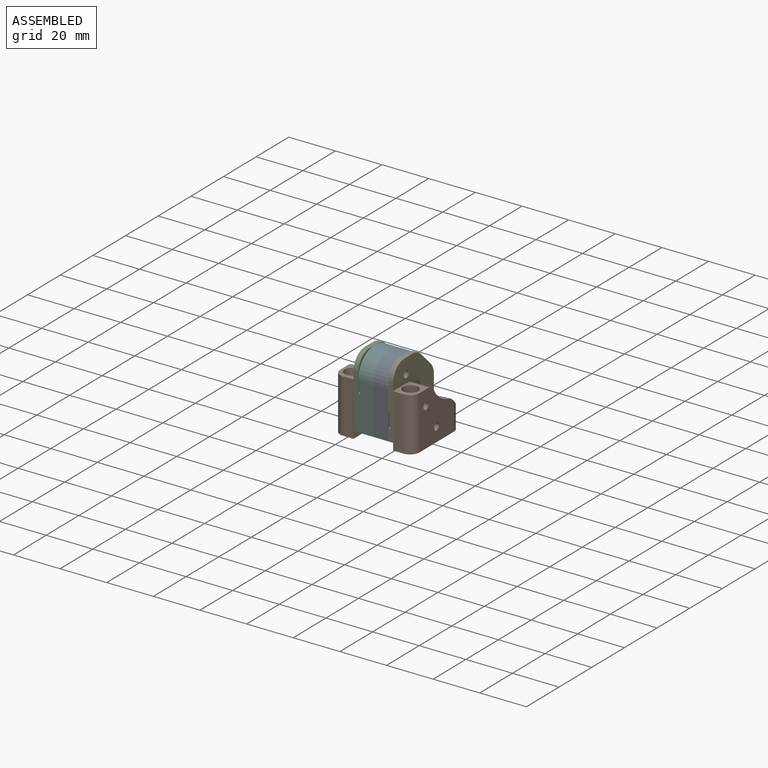
[diagram: assembled view]
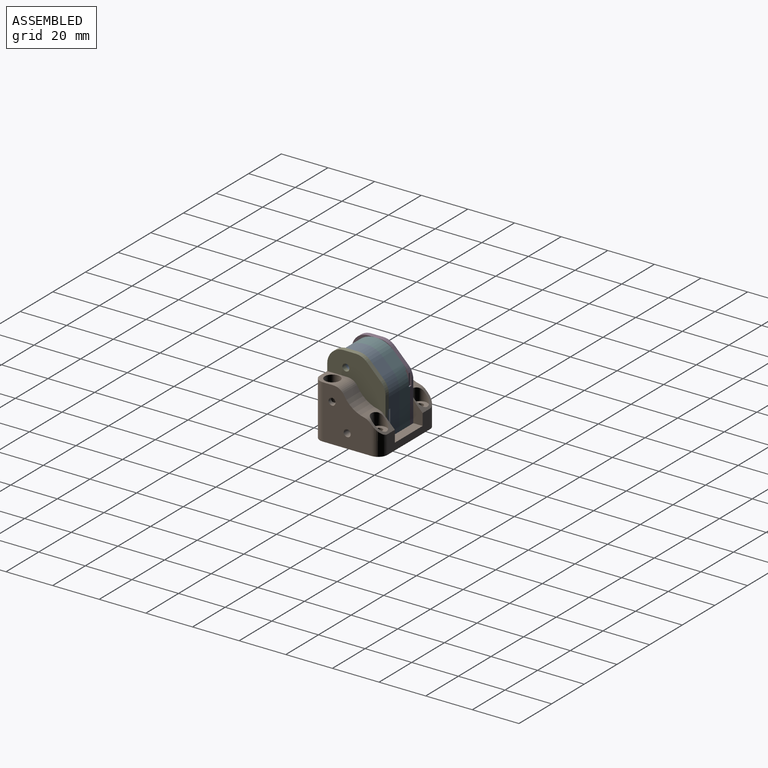
[diagram: assembled view, second angle]
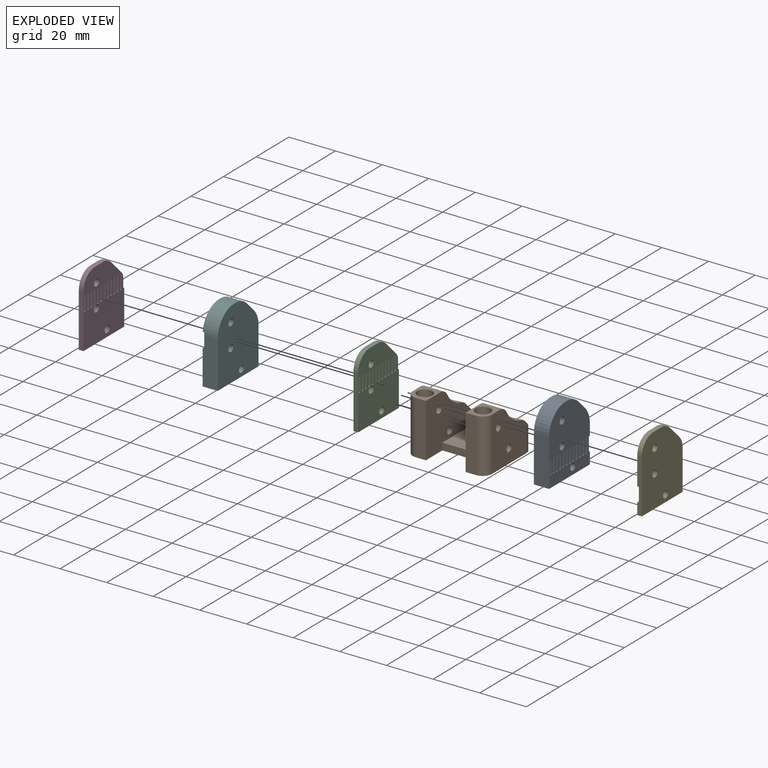
[diagram: exploded view]
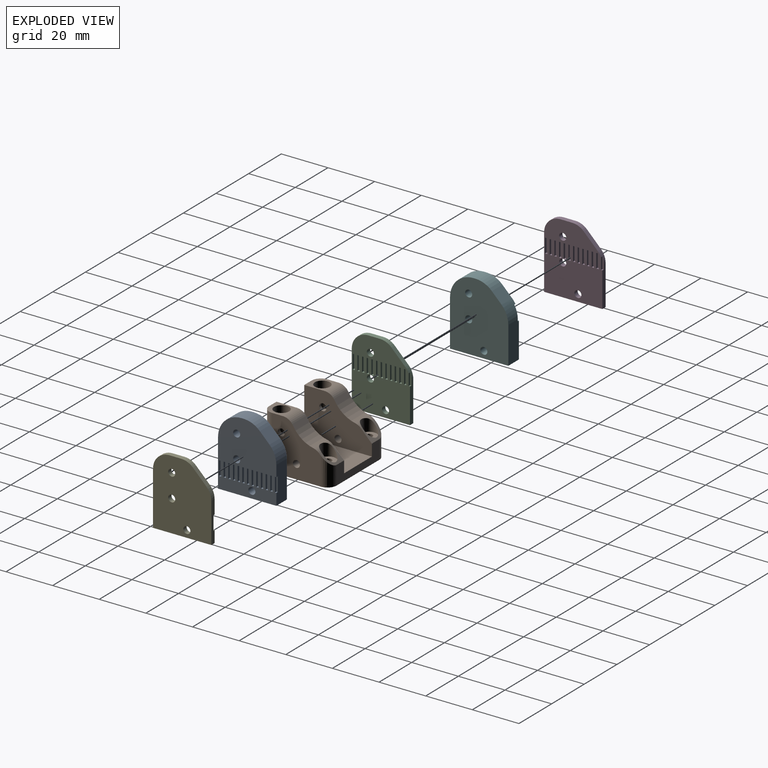
[diagram: exploded view, second angle]
ASSEMBLY  parts=6 mates=4
PART A: 77 faces, bbox 25x30x6.5 mm
  f0: plane 15.86x6.5mm, normal (-1,0,0), area 97.6mm2, adj f1,f2,f5,f9,f11,f12,f75
  f1: plane 30x25mm, normal (0,0,-1), area 576.2mm2, adj f0,f2,f3,f4,f6,f7,f8,f9
  f2: plane 25x6.5mm, normal (0,-1,0), area 162.5mm2, adj f0,f1,f3,f5
  f3: plane 20x6.5mm, normal (1,0,0), area 130mm2, adj f1,f2,f5,f76
  f4: plane 6.5x0.86mm, normal (0,1,0), area 5.6mm2, adj f1,f5,f74,f76
  f5: plane 30x25mm, normal (0,0,1), area 653mm2, adj f0,f2,f3,f4,f6,f7,f8,f73
  f6: cylinder r=1.5mm len=6.5mm, axis (0,0,1), area 61.3mm2, adj f1,f5
  f7: cylinder r=1.5mm len=6.5mm, axis (0,0,1), area 61.3mm2, adj f1,f5
  f8: cylinder r=1.5mm len=6.5mm, axis (0,0,1), area 61.3mm2, adj f1,f5
  f9: plane 0.9x0.6mm, normal (0,-1,0), area 0.5mm2, adj f0,f1,f10,f12
  f10: plane 6.1x0.9mm, normal (-1,0,0), area 5.5mm2, adj f1,f9,f11,f12
  f11: plane 0.9x0.6mm, normal (0,1,0), area 0.5mm2, adj f0,f1,f10,f12
  f12: plane 6.1x0.6mm, normal (0,0,-1), area 3.7mm2, adj f0,f9,f10,f11
  f13: plane 1x0.9mm, normal (0,-1,0), area 0.9mm2, adj f1,f14,f16,f17
  f14: plane 6.1x0.9mm, normal (-1,0,0), area 5.5mm2, adj f1,f13,f15,f17
  f15: plane 1x0.9mm, normal (0,1,0), area 0.9mm2, adj f1,f14,f16,f17
  f16: plane 6.1x0.9mm, normal (1,0,0), area 5.5mm2, adj f1,f13,f15,f17
  f17: plane 6.1x1mm, normal (0,0,-1), area 6.1mm2, adj f13,f14,f15,f16
  f18: plane 6.1x0.9mm, normal (-1,0,0), area 5.5mm2, adj f1,f19,f21,f22
  f19: plane 1x0.9mm, normal (0,1,0), area 0.9mm2, adj f1,f18,f20,f22
  f20: plane 6.1x0.9mm, normal (1,0,0), area 5.5mm2, adj f1,f19,f21,f22
  f21: plane 1x0.9mm, normal (0,-1,0), area 0.9mm2, adj f1,f18,f20,f22
  f22: plane 6.1x1mm, normal (0,0,-1), area 6.1mm2, adj f18,f19,f20,f21
  f23: plane 1x0.9mm, normal (0,-1,0), area 0.9mm2, adj f1,f24,f26,f27
  f24: plane 6.1x0.9mm, normal (-1,0,0), area 5.5mm2, adj f1,f23,f25,f27
  f25: plane 1x0.9mm, normal (0,1,0), area 0.9mm2, adj f1,f24,f26,f27
  f26: plane 6.1x0.9mm, normal (1,0,0), area 5.5mm2, adj f1,f23,f25,f27
  f27: plane 6.1x1mm, normal (0,0,-1), area 6.1mm2, adj f23,f24,f25,f26
  f28: plane 6.1x0.9mm, normal (-1,0,0), area 5.5mm2, adj f1,f29,f31,f32
  f29: plane 1x0.9mm, normal (0,1,0), area 0.9mm2, adj f1,f28,f30,f32
  f30: plane 6.1x0.9mm, normal (1,0,0), area 5.5mm2, adj f1,f29,f31,f32
  f31: plane 1x0.9mm, normal (0,-1,0), area 0.9mm2, adj f1,f28,f30,f32
  f32: plane 6.1x1mm, normal (0,0,-1), area 6.1mm2, adj f28,f29,f30,f31
  f33: plane 6.1x0.9mm, normal (-1,0,0), area 5.5mm2, adj f1,f34,f36,f37
  f34: plane 1x0.9mm, normal (0,1,0), area 0.9mm2, adj f1,f33,f35,f37
  f35: plane 6.1x0.9mm, normal (1,0,0), area 5.5mm2, adj f1,f34,f36,f37
  f36: plane 1x0.9mm, normal (0,-1,0), area 0.9mm2, adj f1,f33,f35,f37
  f37: plane 6.1x1mm, normal (0,0,-1), area 6.1mm2, adj f33,f34,f35,f36
  f38: plane 6.1x0.9mm, normal (-1,0,0), area 5.5mm2, adj f1,f39,f41,f42
  f39: plane 1x0.9mm, normal (0,1,0), area 0.9mm2, adj f1,f38,f40,f42
  f40: plane 6.1x0.9mm, normal (1,0,0), area 5.5mm2, adj f1,f39,f41,f42
  f41: plane 1x0.9mm, normal (0,-1,0), area 0.9mm2, adj f1,f38,f40,f42
  f42: plane 6.1x1mm, normal (0,0,-1), area 6.1mm2, adj f38,f39,f40,f41
  f43: plane 6.1x0.9mm, normal (-1,0,0), area 5.5mm2, adj f1,f44,f46,f47
  f44: plane 1x0.9mm, normal (0,1,0), area 0.9mm2, adj f1,f43,f45,f47
  f45: plane 6.1x0.9mm, normal (1,0,0), area 5.5mm2, adj f1,f44,f46,f47
  f46: plane 1x0.9mm, normal (0,-1,0), area 0.9mm2, adj f1,f43,f45,f47
  f47: plane 6.1x1mm, normal (0,0,-1), area 6.1mm2, adj f43,f44,f45,f46
  f48: plane 6.1x0.9mm, normal (-1,0,0), area 5.5mm2, adj f1,f49,f51,f52
  f49: plane 1x0.9mm, normal (0,1,0), area 0.9mm2, adj f1,f48,f50,f52
  f50: plane 6.1x0.9mm, normal (1,0,0), area 5.5mm2, adj f1,f49,f51,f52
  f51: plane 1x0.9mm, normal (0,-1,0), area 0.9mm2, adj f1,f48,f50,f52
  f52: plane 6.1x1mm, normal (0,0,-1), area 6.1mm2, adj f48,f49,f50,f51
  f53: plane 6.1x0.9mm, normal (-1,0,0), area 5.5mm2, adj f1,f54,f56,f57
  f54: plane 1x0.9mm, normal (0,1,0), area 0.9mm2, adj f1,f53,f55,f57
  f55: plane 6.1x0.9mm, normal (1,0,0), area 5.5mm2, adj f1,f54,f56,f57
  f56: plane 1x0.9mm, normal (0,-1,0), area 0.9mm2, adj f1,f53,f55,f57
  f57: plane 6.1x1mm, normal (0,0,-1), area 6.1mm2, adj f53,f54,f55,f56
  f58: plane 6.1x0.9mm, normal (-1,0,0), area 5.5mm2, adj f1,f59,f61,f62
  f59: plane 1x0.9mm, normal (0,1,0), area 0.9mm2, adj f1,f58,f60,f62
  f60: plane 6.1x0.9mm, normal (1,0,0), area 5.5mm2, adj f1,f59,f61,f62
  f61: plane 1x0.9mm, normal (0,-1,0), area 0.9mm2, adj f1,f58,f60,f62
  f62: plane 6.1x1mm, normal (0,0,-1), area 6.1mm2, adj f58,f59,f60,f61
  f63: plane 6.1x0.9mm, normal (-1,0,0), area 5.5mm2, adj f1,f64,f66,f67
  f64: plane 1x0.9mm, normal (0,1,0), area 0.9mm2, adj f1,f63,f65,f67
  f65: plane 6.1x0.9mm, normal (1,0,0), area 5.5mm2, adj f1,f64,f66,f67
  f66: plane 1x0.9mm, normal (0,-1,0), area 0.9mm2, adj f1,f63,f65,f67
  f67: plane 6.1x1mm, normal (0,0,-1), area 6.1mm2, adj f63,f64,f65,f66
  f68: plane 6.1x0.9mm, normal (-1,0,0), area 5.5mm2, adj f1,f69,f71,f72
  f69: plane 1x0.9mm, normal (0,1,0), area 0.9mm2, adj f1,f68,f70,f72
  f70: plane 6.1x0.9mm, normal (1,0,0), area 5.5mm2, adj f1,f69,f71,f72
  f71: plane 1x0.9mm, normal (0,-1,0), area 0.9mm2, adj f1,f68,f70,f72
  f72: plane 6.1x1mm, normal (0,0,-1), area 6.1mm2, adj f68,f69,f70,f71
  f73: plane 6.5x4.14mm, normal (-0.71,0.71,0), area 38.1mm2, adj f1,f5,f74,f75
  f74: cylinder r=10mm len=7.07mm, axis (0,0,-1), area 51.1mm2, adj f1,f4,f5,f73
  f75: cylinder r=10mm len=7.07mm, axis (0,0,-1), area 51.1mm2, adj f0,f1,f5,f73
  f76: cylinder r=10mm len=10mm, axis (0,0,-1), area 102.1mm2, adj f1,f3,f4,f5
PART B: 42 faces, bbox 29x34x23 mm
  f0: plane 23x4.5mm, normal (1,0,0), area 103.5mm2, adj f2,f10,f12,f32
  f1: plane 19x17mm, normal (0,0,1), area 323mm2, adj f4,f9,f12,f13
  f2: plane 34x29mm, normal (0,0,-1), area 774mm2, adj f0,f3,f4,f5,f6,f9,f12,f13
  f3: plane 23x4.5mm, normal (1,0,0), area 103.5mm2, adj f2,f7,f9,f34
  f4: plane 26x8mm, normal (-1,0,0), area 123mm2, adj f1,f2,f9,f12,f30,f31,f33,f35
  f5: plane 23x21mm, normal (0,-1,0), area 375.7mm2, adj f2,f7,f8,f26,f29,f31,f34,f35
  f6: plane 23x21mm, normal (0,1,0), area 375.7mm2, adj f2,f10,f11,f27,f28,f30,f32,f33
  f7: plane 8.72x8.5mm, normal (0,0,1), area 37.5mm2, adj f3,f5,f9,f24,f34,f41
  f8: cylinder r=13mm len=8.91mm, axis (0,-1,0), area 96mm2, adj f5,f9,f20,f36,f37,f41
  f9: plane 29x23mm, normal (0,1,0), area 450.7mm2, adj f1,f2,f3,f4,f7,f8,f13,f26
  f10: plane 8.72x8.5mm, normal (0,0,1), area 37.5mm2, adj f0,f6,f12,f22,f32,f40
  f11: cylinder r=13mm len=8.91mm, axis (0,1,0), area 96mm2, adj f6,f12,f18,f38,f39,f40
  f12: plane 29x23mm, normal (0,-1,0), area 450.7mm2, adj f0,f1,f2,f4,f10,f11,f13,f27
  f13: plane 17x3mm, normal (1,0,0), area 51mm2, adj f1,f2,f9,f12
  f14: cylinder r=1.5mm len=8.5mm, axis (0,0,1), area 80.1mm2, adj f2,f19
  f15: cylinder r=1.5mm len=8.5mm, axis (0,0,1), area 80.1mm2, adj f2,f21
  f16: cylinder r=1.5mm len=8.5mm, axis (0,0,1), area 80.1mm2, adj f2,f25
  f17: cylinder r=1.5mm len=8.5mm, axis (0,0,1), area 80.1mm2, adj f2,f23
  f18: cylinder r=3.25mm len=6.5mm, axis (0,0,1), area 65.8mm2, adj f11,f19,f30,f38,f39
  f19: plane 6.5x6.5mm, normal (0,0,1), area 26.1mm2, adj f14,f18
  f20: cylinder r=3.25mm len=6.5mm, axis (0,0,1), area 65.8mm2, adj f8,f21,f31,f36,f37
  f21: plane 6.5x6.5mm, normal (0,0,1), area 26.1mm2, adj f15,f20
  f22: cylinder r=3.25mm len=14.5mm, axis (0,0,1), area 277.2mm2, adj f10,f23,f27
  f23: plane 6.5x6.5mm, normal (0,0,1), area 26.1mm2, adj f17,f22
  f24: cylinder r=3.25mm len=14.5mm, axis (0,0,1), area 277.2mm2, adj f7,f25,f26
  f25: plane 6.5x6.5mm, normal (0,0,1), area 26.1mm2, adj f16,f24
  f26: cylinder r=1.5mm len=8.5mm, axis (0,-1,0), area 56.2mm2, adj f5,f9,f24
  f27: cylinder r=1.5mm len=8.5mm, axis (0,-1,0), area 56.2mm2, adj f6,f12,f22
  f28: cylinder r=1.5mm len=8.5mm, axis (0,-1,0), area 80.1mm2, adj f6,f12
  f29: cylinder r=1.5mm len=8.5mm, axis (0,-1,0), area 80.1mm2, adj f5,f9
  f30: plane 8.5x4.69mm, normal (-0.71,0,0.71), area 21.8mm2, adj f4,f6,f12,f18,f33,f38,f39
  f31: plane 8.5x4.69mm, normal (-0.71,0,0.71), area 21.8mm2, adj f4,f5,f9,f20,f35,f36,f37
  f32: cylinder r=4mm len=23mm, axis (0,0,1), area 144.5mm2, adj f0,f2,f6,f10
  f33: cylinder r=4mm len=12mm, axis (0,0,-1), area 59.4mm2, adj f2,f4,f6,f30
  f34: cylinder r=4mm len=23mm, axis (0,0,-1), area 144.5mm2, adj f2,f3,f5,f7
  f35: cylinder r=4mm len=12mm, axis (0,0,1), area 59.4mm2, adj f2,f4,f5,f31
  f36: cylinder r=5mm len=2.75mm, axis (0,-1,0), area 3.8mm2, adj f8,f9,f20,f31
  f37: cylinder r=5mm len=3.25mm, axis (0,-1,0), area 5.2mm2, adj f5,f8,f20,f31
  f38: cylinder r=5mm len=3.25mm, axis (0,1,0), area 5.2mm2, adj f6,f11,f18,f30
  f39: cylinder r=5mm len=2.75mm, axis (0,1,0), area 3.8mm2, adj f11,f12,f18,f30
  f40: cylinder r=5mm len=8.5mm, axis (0,1,0), area 45.1mm2, adj f6,f10,f11,f12
  f41: cylinder r=5mm len=8.5mm, axis (0,-1,0), area 45.1mm2, adj f5,f7,f8,f9
PART C: 76 faces, bbox 25x30x2 mm
  f0: plane 17.1x2mm, normal (-1,0,0), area 32.3mm2, adj f1,f2,f5,f10,f11,f74
  f1: plane 30x25mm, normal (0,0,-1), area 590.6mm2, adj f0,f2,f3,f4,f6,f7,f8,f9
  f2: plane 25x2mm, normal (0,-1,0), area 50mm2, adj f0,f1,f3,f5
  f3: plane 23x2mm, normal (1,0,0), area 46mm2, adj f1,f2,f5,f75
  f4: plane 5.1x2mm, normal (0,1,0), area 10.2mm2, adj f1,f5,f73,f75
  f5: plane 30x25mm, normal (0,0,1), area 666.2mm2, adj f0,f2,f3,f4,f6,f7,f8,f72
  f6: cylinder r=1.5mm len=3mm, axis (0,0,1), area 18.8mm2, adj f1,f5
  f7: cylinder r=1.5mm len=3mm, axis (0,0,1), area 18.8mm2, adj f1,f5
  f8: cylinder r=1.5mm len=3mm, axis (0,0,1), area 18.8mm2, adj f1,f5
  f9: plane 4.94x0.9mm, normal (-1,0,0), area 4.4mm2, adj f1,f10,f11,f74
  f10: plane 0.9x0.6mm, normal (0,1,0), area 0.5mm2, adj f0,f1,f9,f11
  f11: plane 4.94x0.6mm, normal (0,0,-1), area 2.4mm2, adj f0,f9,f10,f74
  f12: plane 1x0.9mm, normal (0,-1,0), area 0.9mm2, adj f1,f13,f15,f16
  f13: plane 6.1x0.9mm, normal (-1,0,0), area 5.5mm2, adj f1,f12,f14,f16
  f14: plane 1x0.9mm, normal (0,1,0), area 0.9mm2, adj f1,f13,f15,f16
  f15: plane 6.1x0.9mm, normal (1,0,0), area 5.5mm2, adj f1,f12,f14,f16
  f16: plane 6.1x1mm, normal (0,0,-1), area 6.1mm2, adj f12,f13,f14,f15
  f17: plane 6.1x0.9mm, normal (-1,0,0), area 5.5mm2, adj f1,f18,f20,f21
  f18: plane 1x0.9mm, normal (0,1,0), area 0.9mm2, adj f1,f17,f19,f21
  f19: plane 6.1x0.9mm, normal (1,0,0), area 5.5mm2, adj f1,f18,f20,f21
  f20: plane 1x0.9mm, normal (0,-1,0), area 0.9mm2, adj f1,f17,f19,f21
  f21: plane 6.1x1mm, normal (0,0,-1), area 6.1mm2, adj f17,f18,f19,f20
  f22: plane 1x0.9mm, normal (0,-1,0), area 0.9mm2, adj f1,f23,f25,f26
  f23: plane 6.1x0.9mm, normal (-1,0,0), area 5.5mm2, adj f1,f22,f24,f26
  f24: plane 1x0.9mm, normal (0,1,0), area 0.9mm2, adj f1,f23,f25,f26
  f25: plane 6.1x0.9mm, normal (1,0,0), area 5.5mm2, adj f1,f22,f24,f26
  f26: plane 6.1x1mm, normal (0,0,-1), area 6.1mm2, adj f22,f23,f24,f25
  f27: plane 6.1x0.9mm, normal (-1,0,0), area 5.5mm2, adj f1,f28,f30,f31
  f28: plane 1x0.9mm, normal (0,1,0), area 0.9mm2, adj f1,f27,f29,f31
  f29: plane 6.1x0.9mm, normal (1,0,0), area 5.5mm2, adj f1,f28,f30,f31
  f30: plane 1x0.9mm, normal (0,-1,0), area 0.9mm2, adj f1,f27,f29,f31
  f31: plane 6.1x1mm, normal (0,0,-1), area 6.1mm2, adj f27,f28,f29,f30
  f32: plane 6.1x0.9mm, normal (-1,0,0), area 5.5mm2, adj f1,f33,f35,f36
  f33: plane 1x0.9mm, normal (0,1,0), area 0.9mm2, adj f1,f32,f34,f36
  f34: plane 6.1x0.9mm, normal (1,0,0), area 5.5mm2, adj f1,f33,f35,f36
  f35: plane 1x0.9mm, normal (0,-1,0), area 0.9mm2, adj f1,f32,f34,f36
  f36: plane 6.1x1mm, normal (0,0,-1), area 6.1mm2, adj f32,f33,f34,f35
  f37: plane 6.1x0.9mm, normal (-1,0,0), area 5.5mm2, adj f1,f38,f40,f41
  f38: plane 1x0.9mm, normal (0,1,0), area 0.9mm2, adj f1,f37,f39,f41
  f39: plane 6.1x0.9mm, normal (1,0,0), area 5.5mm2, adj f1,f38,f40,f41
  f40: plane 1x0.9mm, normal (0,-1,0), area 0.9mm2, adj f1,f37,f39,f41
  f41: plane 6.1x1mm, normal (0,0,-1), area 6.1mm2, adj f37,f38,f39,f40
  f42: plane 6.1x0.9mm, normal (-1,0,0), area 5.5mm2, adj f1,f43,f45,f46
  f43: plane 1x0.9mm, normal (0,1,0), area 0.9mm2, adj f1,f42,f44,f46
  f44: plane 6.1x0.9mm, normal (1,0,0), area 5.5mm2, adj f1,f43,f45,f46
  f45: plane 1x0.9mm, normal (0,-1,0), area 0.9mm2, adj f1,f42,f44,f46
  f46: plane 6.1x1mm, normal (0,0,-1), area 6.1mm2, adj f42,f43,f44,f45
  f47: plane 6.1x0.9mm, normal (-1,0,0), area 5.5mm2, adj f1,f48,f50,f51
  f48: plane 1x0.9mm, normal (0,1,0), area 0.9mm2, adj f1,f47,f49,f51
  f49: plane 6.1x0.9mm, normal (1,0,0), area 5.5mm2, adj f1,f48,f50,f51
  f50: plane 1x0.9mm, normal (0,-1,0), area 0.9mm2, adj f1,f47,f49,f51
  f51: plane 6.1x1mm, normal (0,0,-1), area 6.1mm2, adj f47,f48,f49,f50
  f52: plane 6.1x0.9mm, normal (-1,0,0), area 5.5mm2, adj f1,f53,f55,f56
  f53: plane 1x0.9mm, normal (0,1,0), area 0.9mm2, adj f1,f52,f54,f56
  f54: plane 6.1x0.9mm, normal (1,0,0), area 5.5mm2, adj f1,f53,f55,f56
  f55: plane 1x0.9mm, normal (0,-1,0), area 0.9mm2, adj f1,f52,f54,f56
  f56: plane 6.1x1mm, normal (0,0,-1), area 6.1mm2, adj f52,f53,f54,f55
  f57: plane 6.1x0.9mm, normal (-1,0,0), area 5.5mm2, adj f1,f58,f60,f61
  f58: plane 1x0.9mm, normal (0,1,0), area 0.9mm2, adj f1,f57,f59,f61
  f59: plane 6.1x0.9mm, normal (1,0,0), area 5.5mm2, adj f1,f58,f60,f61
  f60: plane 1x0.9mm, normal (0,-1,0), area 0.9mm2, adj f1,f57,f59,f61
  f61: plane 6.1x1mm, normal (0,0,-1), area 6.1mm2, adj f57,f58,f59,f60
  f62: plane 6.1x0.9mm, normal (-1,0,0), area 5.5mm2, adj f1,f63,f65,f66
  f63: plane 1x0.9mm, normal (0,1,0), area 0.9mm2, adj f1,f62,f64,f66
  f64: plane 6.1x0.9mm, normal (1,0,0), area 5.5mm2, adj f1,f63,f65,f66
  f65: plane 1x0.9mm, normal (0,-1,0), area 0.9mm2, adj f1,f62,f64,f66
  f66: plane 6.1x1mm, normal (0,0,-1), area 6.1mm2, adj f62,f63,f64,f65
  f67: plane 6.1x0.9mm, normal (-1,0,0), area 5.5mm2, adj f1,f68,f70,f71
  f68: plane 1x0.9mm, normal (0,1,0), area 0.9mm2, adj f1,f67,f69,f71
  f69: plane 6.1x0.9mm, normal (1,0,0), area 5.5mm2, adj f1,f68,f70,f71
  f70: plane 1x0.9mm, normal (0,-1,0), area 0.9mm2, adj f1,f67,f69,f71
  f71: plane 6.1x1mm, normal (0,0,-1), area 6.1mm2, adj f67,f68,f69,f70
  f72: plane 5.9x5.9mm, normal (-0.71,0.71,0), area 16.7mm2, adj f1,f5,f73,f74
  f73: cylinder r=7mm len=4.95mm, axis (0,0,-1), area 11mm2, adj f1,f4,f5,f72
  f74: cylinder r=7mm len=4.95mm, axis (0,0,-1), area 8.4mm2, adj f0,f1,f5,f9,f11,f72
  f75: cylinder r=7mm len=7mm, axis (0,0,-1), area 22mm2, adj f1,f3,f4,f5
PART D: same geometry as C
PART E: 17 faces, bbox 25x30x2 mm
  f0: plane 25x18.9mm, normal (0,0,1), area 395.7mm2, adj f1,f3,f4,f7,f8,f11,f13,f14
  f1: plane 17.1x2mm, normal (-1,0,0), area 29.9mm2, adj f0,f2,f5,f6,f10,f11,f12,f15
  f2: plane 25x2mm, normal (0,-1,0), area 50mm2, adj f1,f3,f5,f6
  f3: plane 23x2mm, normal (1,0,0), area 41.7mm2, adj f0,f2,f5,f6,f10,f11,f12,f16
  f4: plane 5.1x2mm, normal (0,1,0), area 10.2mm2, adj f0,f6,f14,f16
  f5: plane 25x5mm, normal (0,0,1), area 117.9mm2, adj f1,f2,f3,f9,f10
  f6: plane 30x25mm, normal (0,0,-1), area 666.2mm2, adj f1,f2,f3,f4,f7,f8,f9,f13
  f7: cylinder r=1.5mm len=3mm, axis (0,0,1), area 18.8mm2, adj f0,f6
  f8: cylinder r=1.5mm len=3mm, axis (0,0,1), area 18.8mm2, adj f0,f6
  f9: cylinder r=1.5mm len=3mm, axis (0,0,1), area 18.8mm2, adj f5,f6
  f10: plane 25x0.7mm, normal (0,1,0), area 17.5mm2, adj f1,f3,f5,f12
  f11: plane 25x0.7mm, normal (0,-1,0), area 17.5mm2, adj f0,f1,f3,f12
  f12: plane 25x6.1mm, normal (0,0,1), area 152.5mm2, adj f1,f3,f10,f11
  f13: plane 5.9x5.9mm, normal (-0.71,0.71,0), area 16.7mm2, adj f0,f6,f14,f15
  f14: cylinder r=7mm len=4.95mm, axis (0,0,-1), area 11mm2, adj f0,f4,f6,f13
  f15: cylinder r=7mm len=4.95mm, axis (0,0,-1), area 11mm2, adj f0,f1,f6,f13
  f16: cylinder r=7mm len=7mm, axis (0,0,-1), area 22mm2, adj f0,f3,f4,f6
PART F: 17 faces, bbox 25x30x6.5 mm
  f0: plane 25x15mm, normal (0,0,1), area 360.9mm2, adj f1,f2,f3,f8,f9,f10
  f1: plane 15.86x6.5mm, normal (-1,0,0), area 102.5mm2, adj f0,f2,f6,f10,f12,f15
  f2: plane 25x6.5mm, normal (0,-1,0), area 162.5mm2, adj f0,f1,f3,f6
  f3: plane 20x6.5mm, normal (1,0,0), area 126.5mm2, adj f0,f2,f6,f10,f12,f16
  f4: plane 6.5x0.86mm, normal (0,1,0), area 5.6mm2, adj f5,f6,f14,f16
  f5: plane 23.45x8.9mm, normal (0,0,1), area 142.2mm2, adj f4,f7,f11,f13,f14,f15,f16
  f6: plane 30x25mm, normal (0,0,-1), area 653mm2, adj f1,f2,f3,f4,f7,f8,f9,f13
  f7: cylinder r=1.5mm len=6.5mm, axis (0,0,1), area 61.3mm2, adj f5,f6
  f8: cylinder r=1.5mm len=6.5mm, axis (0,0,1), area 61.3mm2, adj f0,f6
  f9: cylinder r=1.5mm len=6.5mm, axis (0,0,1), area 61.3mm2, adj f0,f6
  f10: plane 25x0.7mm, normal (0,1,0), area 17.5mm2, adj f0,f1,f3,f12
  f11: plane 23.45x0.7mm, normal (0,-1,0), area 16.4mm2, adj f5,f12,f15,f16
  f12: plane 25x6.1mm, normal (0,0,1), area 150mm2, adj f1,f3,f10,f11,f15,f16
  f13: plane 6.5x4.14mm, normal (-0.71,0.71,0), area 38.1mm2, adj f5,f6,f14,f15
  f14: cylinder r=10mm len=7.07mm, axis (0,0,-1), area 51.1mm2, adj f4,f5,f6,f13
  f15: cylinder r=10mm len=7.07mm, axis (0,0,-1), area 47.2mm2, adj f1,f5,f6,f11,f12,f13
  f16: cylinder r=10mm len=10mm, axis (0,0,-1), area 101.3mm2, adj f3,f4,f5,f6,f11,f12
PLACE A rot(axis=(0.58,-0.58,-0.58),120deg) t=(38.51,38.62,40.74)mm
PLACE B rot(axis=(0,0,-1),90deg) t=(32.01,40.62,24.24)mm
PLACE C rot(axis=(0.58,-0.58,-0.58),120deg) t=(25.51,38.62,40.74)mm
PLACE D rot(axis=(0.58,-0.58,-0.58),120deg) t=(25.51,38.62,40.74)mm
PLACE E rot(axis=(0.58,-0.58,-0.58),120deg) t=(40.51,38.62,40.74)mm
PLACE F rot(axis=(0.58,-0.58,-0.58),120deg) t=(32.01,38.62,40.74)mm
MATE fastened F.f9 <-> D.f8  axis (-1,0,0) through (25.51,40.62,28.74)mm
MATE fastened A.f8 <-> E.f9  axis (1,0,0) through (38.51,40.62,28.74)mm
MATE fastened F.f9 <-> A.f8  axis (1,0,0) through (32.01,40.62,28.74)mm
MATE fastened B.f28 <-> E.f9  axis (-1,0,0) through (40.51,40.62,28.74)mm
